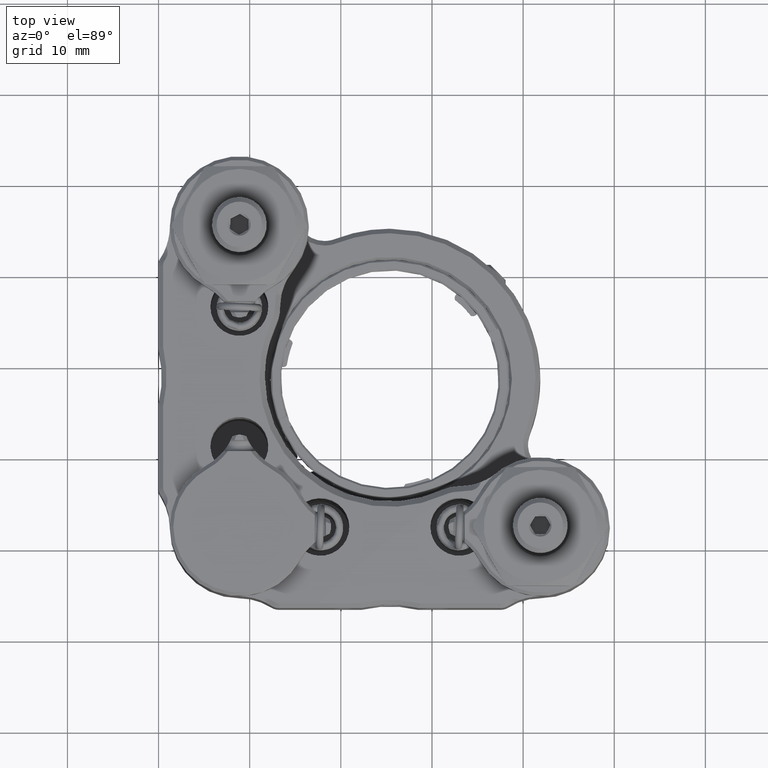
[diagram: clean part render]
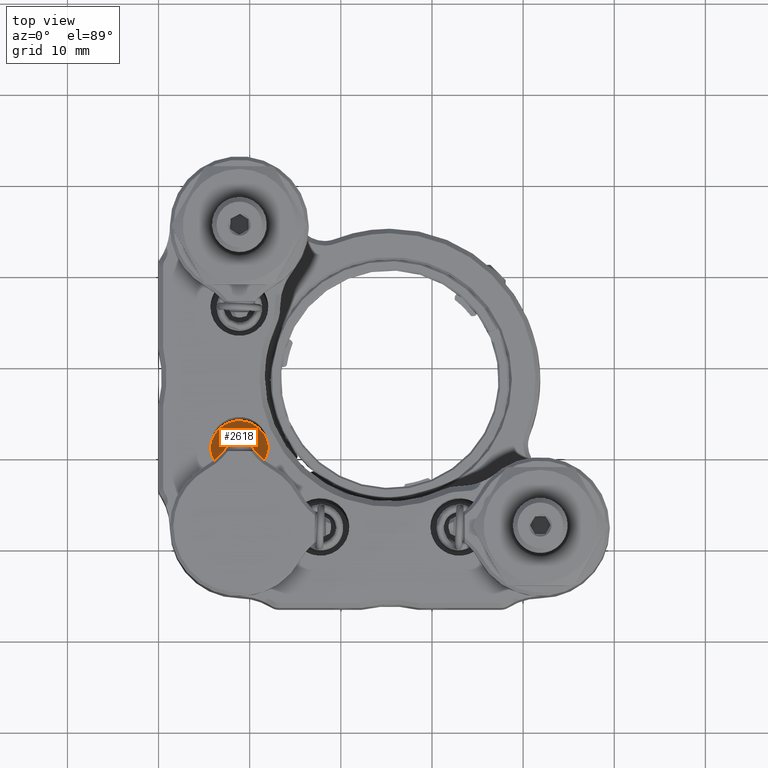
[diagram: same view with one face highlighted and labeled with its STEP entity id]
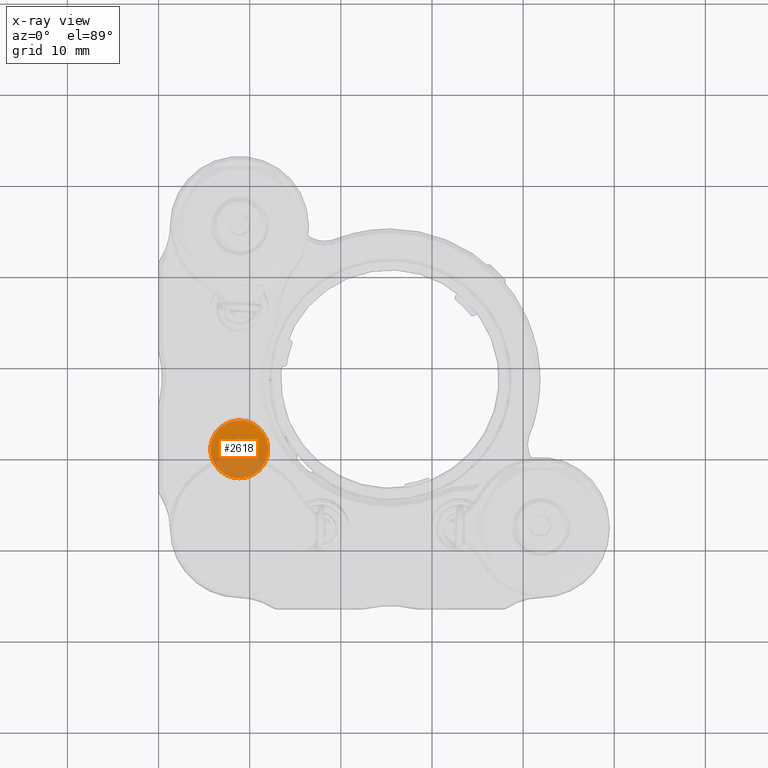
[diagram: x-ray of the same camera — body ghosted, the highlighted face saturated]
A machine part, top view. The second image highlights one B-rep face of the part: STEP entity #2618.
The next image is the same camera in x-ray: the body ghosted, the highlighted face saturated — about 55% of this face is hidden behind the body in this view.
In plain terms, the highlighted planar face has unit normal (0, 0, 1).
Its self-contained STEP definition (entity closure, byte-faithful):
#741 = VERTEX_POINT ( 'NONE', #18259 ) ;
#1077 = FACE_OUTER_BOUND ( 'NONE', #14776, .T. ) ;
#2618 = ADVANCED_FACE ( 'NONE', ( #1077 ), #3288, .T. ) ;
#3288 = PLANE ( 'NONE',  #9976 ) ;
#3565 = CIRCLE ( 'NONE', #19311, 3.175000000000000711 ) ;
#3816 = ORIENTED_EDGE ( 'NONE', *, *, #19695, .T. ) ;
#6311 = VERTEX_POINT ( 'NONE', #20355 ) ;
#6593 = CIRCLE ( 'NONE', #23896, 3.175000000000000711 ) ;
#7755 = ORIENTED_EDGE ( 'NONE', *, *, #15584, .T. ) ;
#9976 = AXIS2_PLACEMENT_3D ( 'NONE', #14639, #22496, #10820 ) ;
#10820 = DIRECTION ( 'NONE',  ( -1.326716514427062066E-14, -1.000000000000000000, 0.000000000000000000 ) ) ;
#13688 = DIRECTION ( 'NONE',  ( 0.000000000000000000, 0.000000000000000000, 1.000000000000000000 ) ) ;
#14639 = CARTESIAN_POINT ( 'NONE',  ( -16.51000000000020052, -7.619999999999786944, -19.42700000000059646 ) ) ;
#14776 = EDGE_LOOP ( 'NONE', ( #7755, #3816 ) ) ;
#15584 = EDGE_CURVE ( 'NONE', #741, #6311, #3565, .T. ) ;
#15647 = CARTESIAN_POINT ( 'NONE',  ( -16.51000000000020052, -7.619999999999786944, -19.42700000000059646 ) ) ;
#18052 = DIRECTION ( 'NONE',  ( 1.000000000000000000, 0.000000000000000000, 0.000000000000000000 ) ) ;
#18259 = CARTESIAN_POINT ( 'NONE',  ( -16.51000000000024315, -10.79499999999978677, -19.42700000000059646 ) ) ;
#19311 = AXIS2_PLACEMENT_3D ( 'NONE', #21872, #23739, #18052 ) ;
#19695 = EDGE_CURVE ( 'NONE', #6311, #741, #6593, .T. ) ;
#20355 = CARTESIAN_POINT ( 'NONE',  ( -16.51000000000016144, -4.444999999999786233, -19.42700000000059646 ) ) ;
#21872 = CARTESIAN_POINT ( 'NONE',  ( -16.51000000000020052, -7.619999999999786944, -19.42700000000059646 ) ) ;
#22496 = DIRECTION ( 'NONE',  ( 0.000000000000000000, 0.000000000000000000, 1.000000000000000000 ) ) ;
#22781 = DIRECTION ( 'NONE',  ( 1.000000000000000000, 0.000000000000000000, 0.000000000000000000 ) ) ;
#23739 = DIRECTION ( 'NONE',  ( 0.000000000000000000, 0.000000000000000000, 1.000000000000000000 ) ) ;
#23896 = AXIS2_PLACEMENT_3D ( 'NONE', #15647, #13688, #22781 ) ;